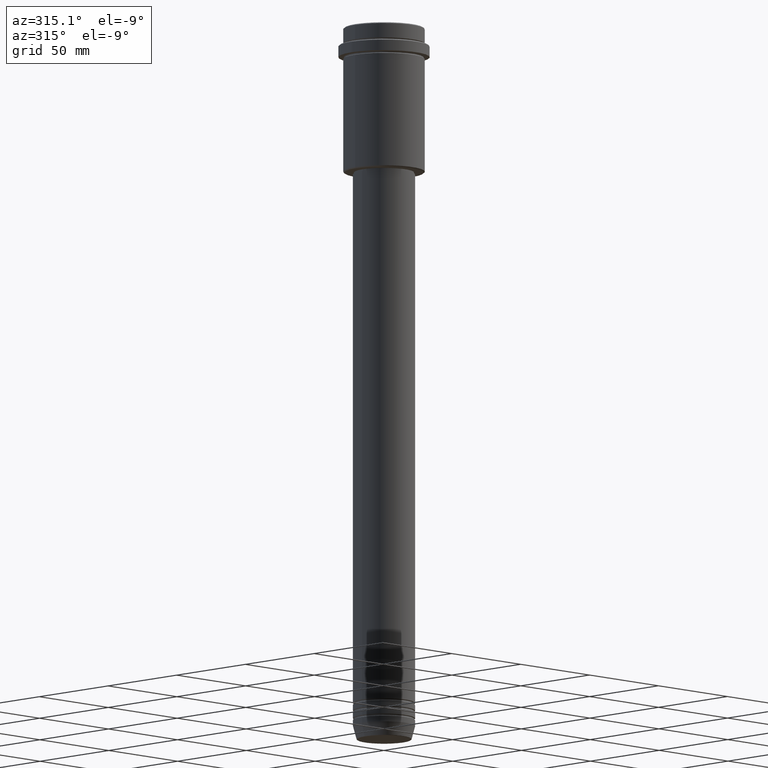
[diagram: clean part render]
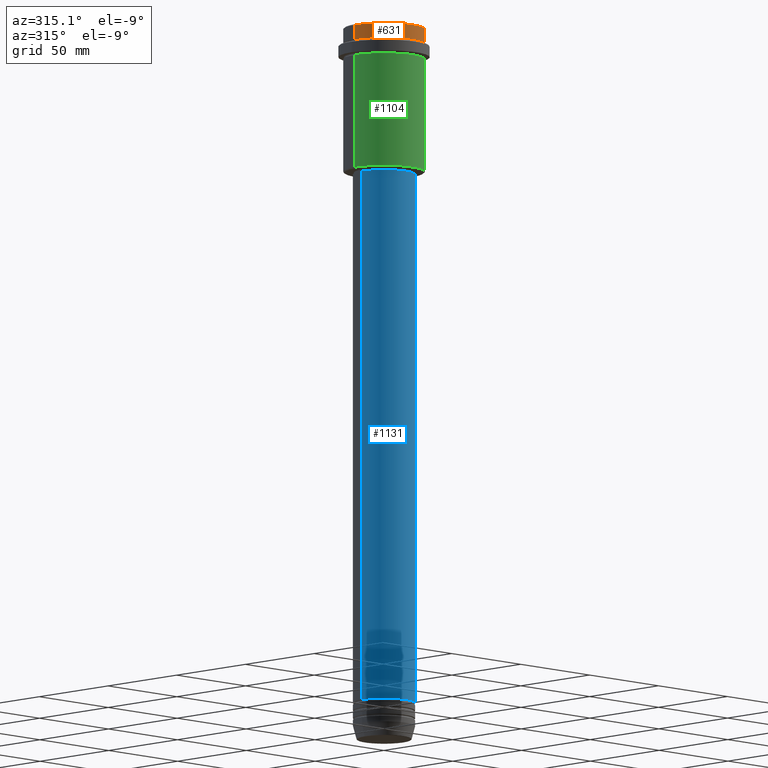
[diagram: same view with three faces highlighted in distinct colors, each labeled with its STEP entity id]
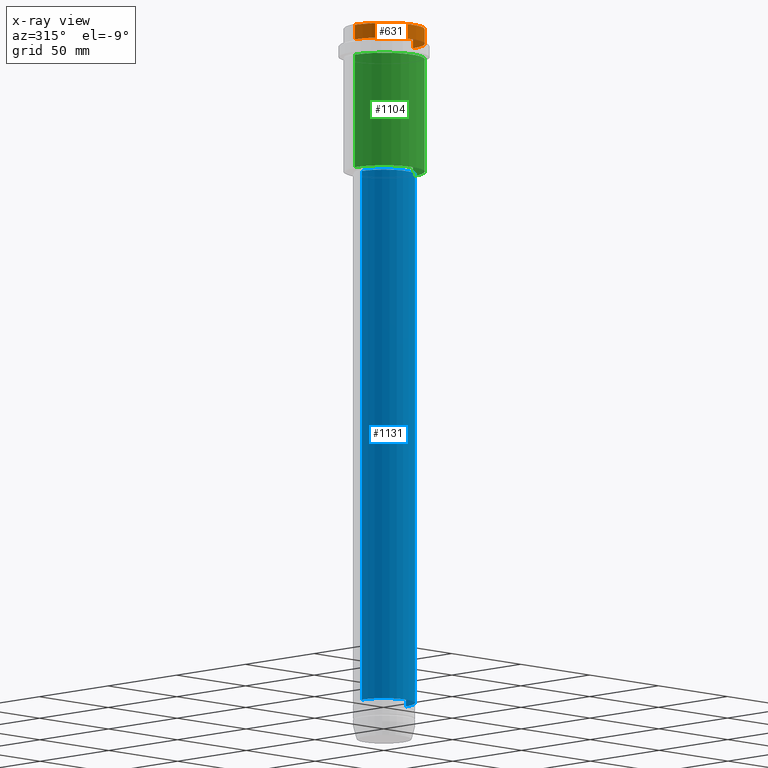
[diagram: x-ray of the same camera — body ghosted, the three highlighted faces saturated]
A machine part, auxiliary view with three faces highlighted in distinct colors.
The next image is the same camera in x-ray (body ghosted, the three faces saturated) — at least one of them is partly hidden behind the body in this view.
Their STEP definitions:

[orange] entity #631 — the highlighted cylindrical surface (partial cylindrical patch) has radius 21 mm, axis along (-0, -0, 1).
#4 = VERTEX_POINT ( 'NONE', #576 ) ;
#41 = LINE ( 'NONE', #1017, #284 ) ;
#49 = EDGE_CURVE ( 'NONE', #821, #822, #194, .T. ) ;
#128 = AXIS2_PLACEMENT_3D ( 'NONE', #431, #1219, #649 ) ;
#166 = DIRECTION ( 'NONE',  ( -0.000000000000000000, -0.000000000000000000, 1.000000000000000000 ) ) ;
#194 = LINE ( 'NONE', #1068, #925 ) ;
#241 = AXIS2_PLACEMENT_3D ( 'NONE', #587, #1244, #910 ) ;
#246 = ORIENTED_EDGE ( 'NONE', *, *, #49, .F. ) ;
#273 = CYLINDRICAL_SURFACE ( 'NONE', #433, 21.00000000000000000 ) ;
#284 = VECTOR ( 'NONE', #899, 1000.000000000000000 ) ;
#351 = CIRCLE ( 'NONE', #128, 21.00000000000000000 ) ;
#375 = FACE_OUTER_BOUND ( 'NONE', #1009, .T. ) ;
#431 = CARTESIAN_POINT ( 'NONE',  ( 0.000000000000000000, 0.000000000000000000, -7.999999999999998224 ) ) ;
#433 = AXIS2_PLACEMENT_3D ( 'NONE', #1146, #166, #820 ) ;
#448 = ORIENTED_EDGE ( 'NONE', *, *, #1341, .T. ) ;
#484 = EDGE_CURVE ( 'NONE', #4, #1324, #41, .T. ) ;
#570 = CARTESIAN_POINT ( 'NONE',  ( -21.00000000000000000, 2.571758278209441661E-15, -0.4999999999999831246 ) ) ;
#576 = CARTESIAN_POINT ( 'NONE',  ( 21.00000000000000000, 0.000000000000000000, -7.999999999999998224 ) ) ;
#585 = ORIENTED_EDGE ( 'NONE', *, *, #1283, .T. ) ;
#587 = CARTESIAN_POINT ( 'NONE',  ( 0.000000000000000000, 0.000000000000000000, -0.4999999999999831246 ) ) ;
#622 = DIRECTION ( 'NONE',  ( -0.000000000000000000, -0.000000000000000000, 1.000000000000000000 ) ) ;
#631 = ADVANCED_FACE ( 'NONE', ( #375 ), #273, .T. ) ;
#649 = DIRECTION ( 'NONE',  ( 1.000000000000000000, 0.000000000000000000, 0.000000000000000000 ) ) ;
#820 = DIRECTION ( 'NONE',  ( 1.000000000000000000, 0.000000000000000000, 0.000000000000000000 ) ) ;
#821 = VERTEX_POINT ( 'NONE', #1117 ) ;
#822 = VERTEX_POINT ( 'NONE', #570 ) ;
#899 = DIRECTION ( 'NONE',  ( -0.000000000000000000, -0.000000000000000000, 1.000000000000000000 ) ) ;
#910 = DIRECTION ( 'NONE',  ( 1.000000000000000000, 0.000000000000000000, 0.000000000000000000 ) ) ;
#925 = VECTOR ( 'NONE', #622, 1000.000000000000000 ) ;
#952 = CIRCLE ( 'NONE', #241, 21.00000000000000000 ) ;
#1009 = EDGE_LOOP ( 'NONE', ( #246, #585, #1255, #448 ) ) ;
#1017 = CARTESIAN_POINT ( 'NONE',  ( 21.00000000000000000, 0.000000000000000000, 0.000000000000000000 ) ) ;
#1068 = CARTESIAN_POINT ( 'NONE',  ( -21.00000000000000000, 2.571758278209441661E-15, 0.000000000000000000 ) ) ;
#1117 = CARTESIAN_POINT ( 'NONE',  ( -21.00000000000000000, 2.571758278209441661E-15, -7.999999999999998224 ) ) ;
#1146 = CARTESIAN_POINT ( 'NONE',  ( 0.000000000000000000, 0.000000000000000000, 0.000000000000000000 ) ) ;
#1219 = DIRECTION ( 'NONE',  ( -0.000000000000000000, -0.000000000000000000, 1.000000000000000000 ) ) ;
#1244 = DIRECTION ( 'NONE',  ( 0.000000000000000000, 0.000000000000000000, -1.000000000000000000 ) ) ;
#1255 = ORIENTED_EDGE ( 'NONE', *, *, #484, .T. ) ;
#1283 = EDGE_CURVE ( 'NONE', #821, #4, #351, .T. ) ;
#1324 = VERTEX_POINT ( 'NONE', #1333 ) ;
#1333 = CARTESIAN_POINT ( 'NONE',  ( 21.00000000000000000, 0.000000000000000000, -0.4999999999999831246 ) ) ;
#1341 = EDGE_CURVE ( 'NONE', #1324, #822, #952, .T. ) ;

[blue] entity #1131 — the highlighted cylindrical surface (edge-blend (fillet) strip) has radius 16 mm, axis along (-0, -0, 1).
#91 = ORIENTED_EDGE ( 'NONE', *, *, #217, .T. ) ;
#161 = LINE ( 'NONE', #1340, #173 ) ;
#173 = VECTOR ( 'NONE', #591, 1000.000000000000000 ) ;
#208 = EDGE_CURVE ( 'NONE', #228, #1357, #272, .T. ) ;
#217 = EDGE_CURVE ( 'NONE', #772, #228, #1079, .T. ) ;
#228 = VERTEX_POINT ( 'NONE', #798 ) ;
#239 = CYLINDRICAL_SURFACE ( 'NONE', #530, 16.00000000000000000 ) ;
#268 = AXIS2_PLACEMENT_3D ( 'NONE', #1308, #880, #662 ) ;
#271 = CARTESIAN_POINT ( 'NONE',  ( 0.000000000000000000, 0.000000000000000000, 0.000000000000000000 ) ) ;
#272 = LINE ( 'NONE', #1336, #999 ) ;
#274 = ORIENTED_EDGE ( 'NONE', *, *, #208, .T. ) ;
#347 = DIRECTION ( 'NONE',  ( -0.000000000000000000, -0.000000000000000000, 1.000000000000000000 ) ) ;
#368 = ORIENTED_EDGE ( 'NONE', *, *, #615, .F. ) ;
#387 = CARTESIAN_POINT ( 'NONE',  ( -16.00000000000000355, 1.959434878635765526E-15, -76.00000000000004263 ) ) ;
#451 = CARTESIAN_POINT ( 'NONE',  ( 16.00000000000000355, 0.000000000000000000, -76.00000000000004263 ) ) ;
#461 = AXIS2_PLACEMENT_3D ( 'NONE', #789, #1233, #464 ) ;
#464 = DIRECTION ( 'NONE',  ( 1.000000000000000000, 0.000000000000000000, 0.000000000000000000 ) ) ;
#530 = AXIS2_PLACEMENT_3D ( 'NONE', #271, #989, #1110 ) ;
#591 = DIRECTION ( 'NONE',  ( -0.000000000000000000, -0.000000000000000000, 1.000000000000000000 ) ) ;
#615 = EDGE_CURVE ( 'NONE', #772, #655, #161, .T. ) ;
#655 = VERTEX_POINT ( 'NONE', #387 ) ;
#662 = DIRECTION ( 'NONE',  ( 1.000000000000000000, 0.000000000000000000, 0.000000000000000000 ) ) ;
#664 = FACE_OUTER_BOUND ( 'NONE', #911, .T. ) ;
#690 = CARTESIAN_POINT ( 'NONE',  ( -16.00000000000000000, 1.959434878635765131E-15, -350.9999999999999432 ) ) ;
#724 = ORIENTED_EDGE ( 'NONE', *, *, #1223, .F. ) ;
#772 = VERTEX_POINT ( 'NONE', #690 ) ;
#789 = CARTESIAN_POINT ( 'NONE',  ( 0.000000000000000000, 0.000000000000000000, -350.9999999999999432 ) ) ;
#798 = CARTESIAN_POINT ( 'NONE',  ( 16.00000000000000000, 0.000000000000000000, -350.9999999999999432 ) ) ;
#880 = DIRECTION ( 'NONE',  ( -0.000000000000000000, -0.000000000000000000, 1.000000000000000000 ) ) ;
#911 = EDGE_LOOP ( 'NONE', ( #368, #91, #274, #724 ) ) ;
#989 = DIRECTION ( 'NONE',  ( -0.000000000000000000, -0.000000000000000000, 1.000000000000000000 ) ) ;
#999 = VECTOR ( 'NONE', #347, 1000.000000000000000 ) ;
#1079 = CIRCLE ( 'NONE', #461, 16.00000000000000000 ) ;
#1110 = DIRECTION ( 'NONE',  ( 1.000000000000000000, 0.000000000000000000, 0.000000000000000000 ) ) ;
#1131 = ADVANCED_FACE ( 'NONE', ( #664 ), #239, .T. ) ;
#1223 = EDGE_CURVE ( 'NONE', #655, #1357, #1230, .T. ) ;
#1230 = CIRCLE ( 'NONE', #268, 16.00000000000000355 ) ;
#1233 = DIRECTION ( 'NONE',  ( -0.000000000000000000, -0.000000000000000000, 1.000000000000000000 ) ) ;
#1308 = CARTESIAN_POINT ( 'NONE',  ( 0.000000000000000000, 0.000000000000000000, -76.00000000000004263 ) ) ;
#1336 = CARTESIAN_POINT ( 'NONE',  ( 16.00000000000000000, 0.000000000000000000, 0.000000000000000000 ) ) ;
#1340 = CARTESIAN_POINT ( 'NONE',  ( -16.00000000000000000, 1.959434878635765131E-15, 0.000000000000000000 ) ) ;
#1357 = VERTEX_POINT ( 'NONE', #451 ) ;

[green] entity #1104 — the highlighted cylindrical surface (partial cylindrical patch) has radius 21 mm, axis along (-0, -0, 1).
#15 = VECTOR ( 'NONE', #648, 1000.000000000000000 ) ;
#34 = CARTESIAN_POINT ( 'NONE',  ( 0.000000000000000000, 0.000000000000000000, -16.00000000000000355 ) ) ;
#111 = CARTESIAN_POINT ( 'NONE',  ( -21.00000000000000000, 2.571758278209441661E-15, -16.00000000000000355 ) ) ;
#127 = AXIS2_PLACEMENT_3D ( 'NONE', #741, #176, #338 ) ;
#176 = DIRECTION ( 'NONE',  ( -0.000000000000000000, -0.000000000000000000, 1.000000000000000000 ) ) ;
#195 = VERTEX_POINT ( 'NONE', #563 ) ;
#200 = EDGE_CURVE ( 'NONE', #1115, #204, #807, .T. ) ;
#204 = VERTEX_POINT ( 'NONE', #580 ) ;
#205 = CARTESIAN_POINT ( 'NONE',  ( -21.00000000000000000, 2.571758278209441661E-15, 0.000000000000000000 ) ) ;
#243 = ORIENTED_EDGE ( 'NONE', *, *, #679, .T. ) ;
#298 = EDGE_CURVE ( 'NONE', #1378, #204, #963, .T. ) ;
#305 = CYLINDRICAL_SURFACE ( 'NONE', #127, 21.00000000000000000 ) ;
#333 = EDGE_CURVE ( 'NONE', #195, #1115, #766, .T. ) ;
#338 = DIRECTION ( 'NONE',  ( 1.000000000000000000, 0.000000000000000000, 0.000000000000000000 ) ) ;
#385 = EDGE_LOOP ( 'NONE', ( #408, #243, #633, #984 ) ) ;
#408 = ORIENTED_EDGE ( 'NONE', *, *, #333, .F. ) ;
#465 = AXIS2_PLACEMENT_3D ( 'NONE', #981, #677, #1112 ) ;
#544 = DIRECTION ( 'NONE',  ( -0.000000000000000000, -0.000000000000000000, 1.000000000000000000 ) ) ;
#563 = CARTESIAN_POINT ( 'NONE',  ( -21.00000000000000000, 2.571758278209441661E-15, -74.49999999999995737 ) ) ;
#580 = CARTESIAN_POINT ( 'NONE',  ( 21.00000000000000000, 0.000000000000000000, -16.00000000000000355 ) ) ;
#633 = ORIENTED_EDGE ( 'NONE', *, *, #298, .T. ) ;
#648 = DIRECTION ( 'NONE',  ( -0.000000000000000000, -0.000000000000000000, 1.000000000000000000 ) ) ;
#677 = DIRECTION ( 'NONE',  ( -0.000000000000000000, -0.000000000000000000, 1.000000000000000000 ) ) ;
#679 = EDGE_CURVE ( 'NONE', #195, #1378, #720, .T. ) ;
#720 = CIRCLE ( 'NONE', #465, 21.00000000000000000 ) ;
#741 = CARTESIAN_POINT ( 'NONE',  ( 0.000000000000000000, 0.000000000000000000, 0.000000000000000000 ) ) ;
#766 = LINE ( 'NONE', #205, #15 ) ;
#782 = VECTOR ( 'NONE', #544, 1000.000000000000000 ) ;
#807 = CIRCLE ( 'NONE', #1383, 21.00000000000000000 ) ;
#856 = CARTESIAN_POINT ( 'NONE',  ( 21.00000000000000000, 0.000000000000000000, 0.000000000000000000 ) ) ;
#892 = DIRECTION ( 'NONE',  ( -0.000000000000000000, -0.000000000000000000, 1.000000000000000000 ) ) ;
#963 = LINE ( 'NONE', #856, #782 ) ;
#981 = CARTESIAN_POINT ( 'NONE',  ( 0.000000000000000000, 0.000000000000000000, -74.49999999999995737 ) ) ;
#984 = ORIENTED_EDGE ( 'NONE', *, *, #200, .F. ) ;
#1104 = ADVANCED_FACE ( 'NONE', ( #1291 ), #305, .T. ) ;
#1112 = DIRECTION ( 'NONE',  ( -1.000000000000000000, 0.000000000000000000, 0.000000000000000000 ) ) ;
#1115 = VERTEX_POINT ( 'NONE', #111 ) ;
#1118 = DIRECTION ( 'NONE',  ( 1.000000000000000000, 0.000000000000000000, 0.000000000000000000 ) ) ;
#1291 = FACE_OUTER_BOUND ( 'NONE', #385, .T. ) ;
#1364 = CARTESIAN_POINT ( 'NONE',  ( 21.00000000000000000, 0.000000000000000000, -74.49999999999995737 ) ) ;
#1378 = VERTEX_POINT ( 'NONE', #1364 ) ;
#1383 = AXIS2_PLACEMENT_3D ( 'NONE', #34, #892, #1118 ) ;